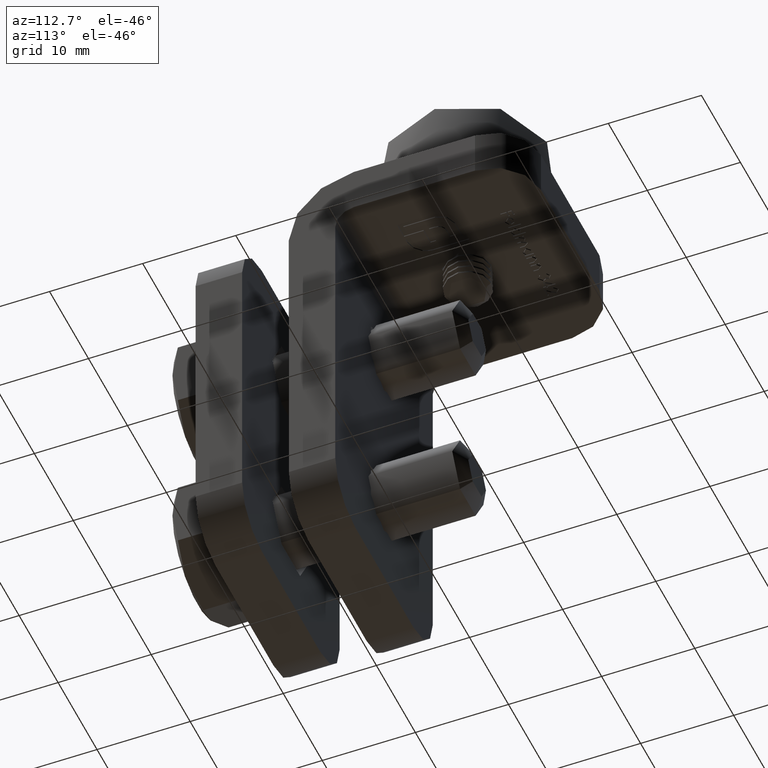
[diagram: clean part render]
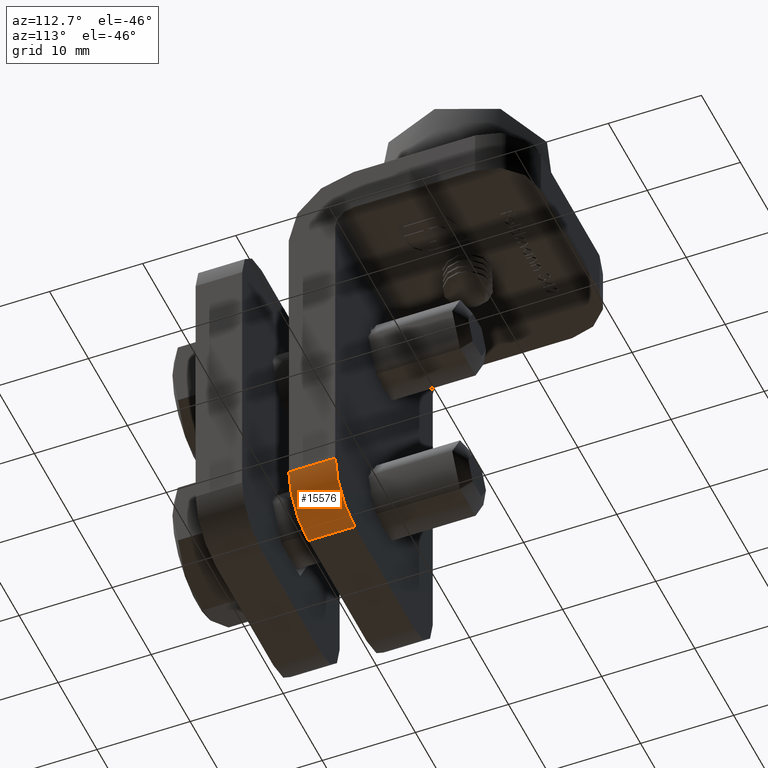
[diagram: same view with one face highlighted and labeled with its STEP entity id]
A machine part, auxiliary view. The second image highlights one B-rep face of the part: STEP entity #15576.
In plain terms, the highlighted cylindrical surface (partial cylindrical patch) has radius 5 mm, axis along (0, -1, 0).
Its self-contained STEP definition (entity closure, byte-faithful):
#756 = CARTESIAN_POINT ( 'NONE',  ( 7.500000000000000888, 0.000000000000000000, 0.000000000000000000 ) ) ;
#845 = CARTESIAN_POINT ( 'NONE',  ( 7.500000000000000888, 5.000000000000000000, 0.000000000000000000 ) ) ;
#1138 = EDGE_CURVE ( 'NONE', #3661, #3866, #8678, .T. ) ;
#1782 = CARTESIAN_POINT ( 'NONE',  ( 12.50000000000000000, 7.000000000000000000, 4.999999999999997335 ) ) ;
#2059 = DIRECTION ( 'NONE',  ( 0.000000000000000000, -1.000000000000000000, 0.000000000000000000 ) ) ;
#2130 = AXIS2_PLACEMENT_3D ( 'NONE', #7661, #2059, #13413 ) ;
#2419 = AXIS2_PLACEMENT_3D ( 'NONE', #2791, #16950, #12653 ) ;
#2791 = CARTESIAN_POINT ( 'NONE',  ( 7.500000000000000888, 0.000000000000000000, 5.000000000000000000 ) ) ;
#2872 = CYLINDRICAL_SURFACE ( 'NONE', #2130, 5.000000000000000000 ) ;
#3279 = DIRECTION ( 'NONE',  ( -0.000000000000000000, 1.000000000000000000, -0.000000000000000000 ) ) ;
#3661 = VERTEX_POINT ( 'NONE', #756 ) ;
#3767 = VECTOR ( 'NONE', #3279, 1000.000000000000000 ) ;
#3866 = VERTEX_POINT ( 'NONE', #12586 ) ;
#4387 = EDGE_LOOP ( 'NONE', ( #5854, #5372, #8026, #7213 ) ) ;
#5058 = EDGE_CURVE ( 'NONE', #13987, #3661, #16298, .T. ) ;
#5372 = ORIENTED_EDGE ( 'NONE', *, *, #14646, .F. ) ;
#5854 = ORIENTED_EDGE ( 'NONE', *, *, #18068, .F. ) ;
#6571 = CIRCLE ( 'NONE', #14953, 5.000000000000000000 ) ;
#6795 = VECTOR ( 'NONE', #7858, 1000.000000000000000 ) ;
#7213 = ORIENTED_EDGE ( 'NONE', *, *, #5058, .F. ) ;
#7562 = LINE ( 'NONE', #1782, #3767 ) ;
#7661 = CARTESIAN_POINT ( 'NONE',  ( 7.500000000000000888, 5.000000000000000000, 5.000000000000000000 ) ) ;
#7858 = DIRECTION ( 'NONE',  ( 0.000000000000000000, -1.000000000000000000, 0.000000000000000000 ) ) ;
#8026 = ORIENTED_EDGE ( 'NONE', *, *, #1138, .F. ) ;
#8678 = CIRCLE ( 'NONE', #2419, 5.000000000000000000 ) ;
#10480 = VERTEX_POINT ( 'NONE', #15859 ) ;
#11330 = DIRECTION ( 'NONE',  ( -0.000000000000000000, 1.000000000000000000, 0.000000000000000000 ) ) ;
#11463 = DIRECTION ( 'NONE',  ( 0.000000000000000000, 0.000000000000000000, 1.000000000000000000 ) ) ;
#11964 = FACE_OUTER_BOUND ( 'NONE', #4387, .T. ) ;
#12586 = CARTESIAN_POINT ( 'NONE',  ( 12.50000000000000000, 0.000000000000000000, 4.999999999999997335 ) ) ;
#12653 = DIRECTION ( 'NONE',  ( 8.673617379884035472E-16, 0.000000000000000000, 1.000000000000000000 ) ) ;
#12789 = CARTESIAN_POINT ( 'NONE',  ( 7.500000000000000888, 5.000000000000000000, 0.000000000000000000 ) ) ;
#13413 = DIRECTION ( 'NONE',  ( 0.000000000000000000, 0.000000000000000000, -1.000000000000000000 ) ) ;
#13987 = VERTEX_POINT ( 'NONE', #12789 ) ;
#14646 = EDGE_CURVE ( 'NONE', #3866, #10480, #7562, .T. ) ;
#14953 = AXIS2_PLACEMENT_3D ( 'NONE', #18378, #11330, #11463 ) ;
#15576 = ADVANCED_FACE ( 'NONE', ( #11964 ), #2872, .T. ) ;
#15859 = CARTESIAN_POINT ( 'NONE',  ( 12.50000000000000000, 5.000000000000000000, 4.999999999999997335 ) ) ;
#16298 = LINE ( 'NONE', #845, #6795 ) ;
#16950 = DIRECTION ( 'NONE',  ( 0.000000000000000000, -1.000000000000000000, -0.000000000000000000 ) ) ;
#18068 = EDGE_CURVE ( 'NONE', #10480, #13987, #6571, .T. ) ;
#18378 = CARTESIAN_POINT ( 'NONE',  ( 7.500000000000000888, 5.000000000000000000, 5.000000000000000000 ) ) ;